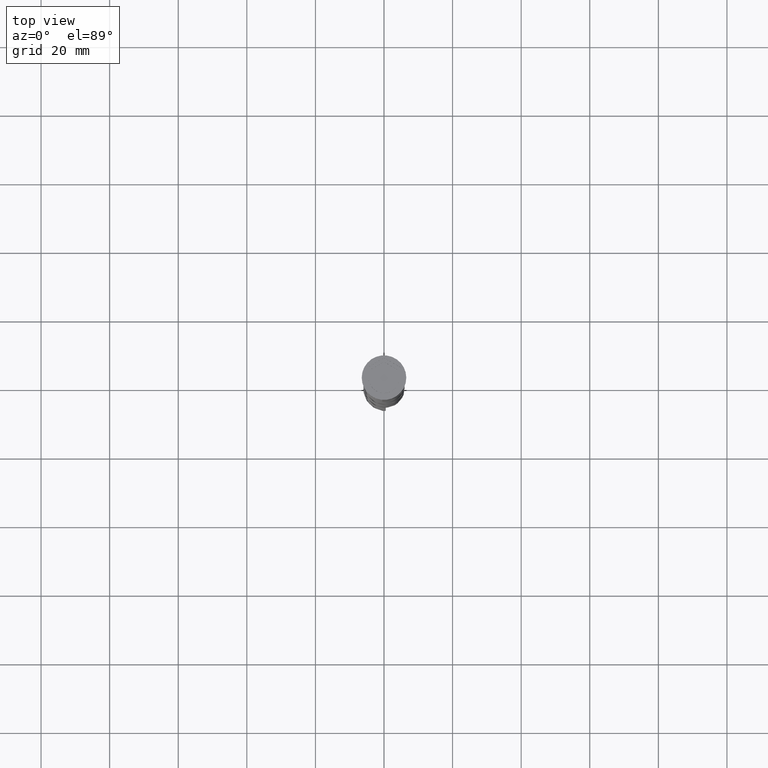
[diagram: clean part render]
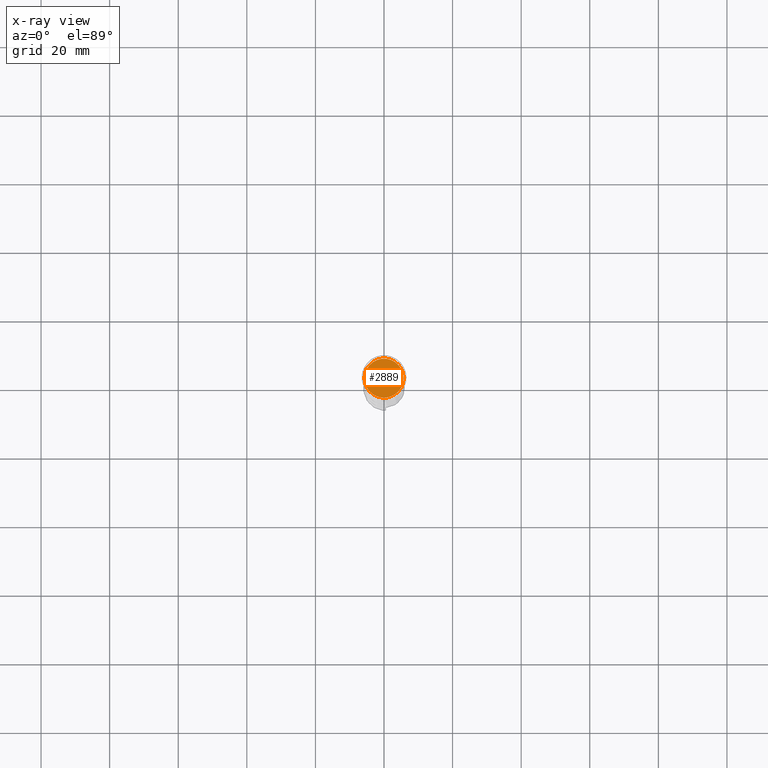
[diagram: x-ray — body ghosted, one internal face saturated and labeled with its STEP entity id]
A machine part, top view, then the same camera in x-ray: the body is ghosted and one INTERNAL B-rep face — a face not visible from any outside direction — is saturated and labeled: STEP entity #2889.
In plain terms, the highlighted planar face has unit normal (0, 0, -1).
Its self-contained STEP definition (entity closure, byte-faithful):
#11 = EDGE_CURVE ( 'NONE', #3739, #3399, #2785, .T. ) ;
#160 = DIRECTION ( 'NONE',  ( 0.000000000000000000, 0.000000000000000000, -1.000000000000000000 ) ) ;
#453 = PLANE ( 'NONE',  #2189 ) ;
#577 = DIRECTION ( 'NONE',  ( -1.000000000000000000, 0.000000000000000000, 0.000000000000000000 ) ) ;
#997 = DIRECTION ( 'NONE',  ( -1.000000000000000000, 0.000000000000000000, 0.000000000000000000 ) ) ;
#1158 = CIRCLE ( 'NONE', #3353, 5.700000000000002842 ) ;
#1169 = DIRECTION ( 'NONE',  ( -0.000000000000000000, -0.000000000000000000, 1.000000000000000000 ) ) ;
#1527 = EDGE_CURVE ( 'NONE', #3399, #3739, #1158, .T. ) ;
#1552 = CARTESIAN_POINT ( 'NONE',  ( 0.000000000000000000, 0.000000000000000000, -10.50000000000000178 ) ) ;
#1645 = CARTESIAN_POINT ( 'NONE',  ( 5.700000000000002842, 7.164183775012019380E-16, -10.50000000000000178 ) ) ;
#1656 = CARTESIAN_POINT ( 'NONE',  ( 0.000000000000000000, 0.000000000000000000, -10.50000000000000178 ) ) ;
#1695 = DIRECTION ( 'NONE',  ( -1.000000000000000000, 0.000000000000000000, -0.000000000000000000 ) ) ;
#2189 = AXIS2_PLACEMENT_3D ( 'NONE', #1656, #160, #1695 ) ;
#2326 = FACE_OUTER_BOUND ( 'NONE', #2863, .T. ) ;
#2472 = ORIENTED_EDGE ( 'NONE', *, *, #1527, .T. ) ;
#2585 = AXIS2_PLACEMENT_3D ( 'NONE', #1552, #3731, #997 ) ;
#2785 = CIRCLE ( 'NONE', #2585, 5.700000000000002842 ) ;
#2863 = EDGE_LOOP ( 'NONE', ( #3813, #2472 ) ) ;
#2889 = ADVANCED_FACE ( 'NONE', ( #2326 ), #453, .F. ) ;
#3245 = CARTESIAN_POINT ( 'NONE',  ( 0.000000000000000000, 0.000000000000000000, -10.50000000000000178 ) ) ;
#3353 = AXIS2_PLACEMENT_3D ( 'NONE', #3245, #1169, #577 ) ;
#3399 = VERTEX_POINT ( 'NONE', #1645 ) ;
#3640 = CARTESIAN_POINT ( 'NONE',  ( -5.700000000000002842, 0.000000000000000000, -10.50000000000000178 ) ) ;
#3731 = DIRECTION ( 'NONE',  ( -0.000000000000000000, -0.000000000000000000, 1.000000000000000000 ) ) ;
#3739 = VERTEX_POINT ( 'NONE', #3640 ) ;
#3813 = ORIENTED_EDGE ( 'NONE', *, *, #11, .T. ) ;